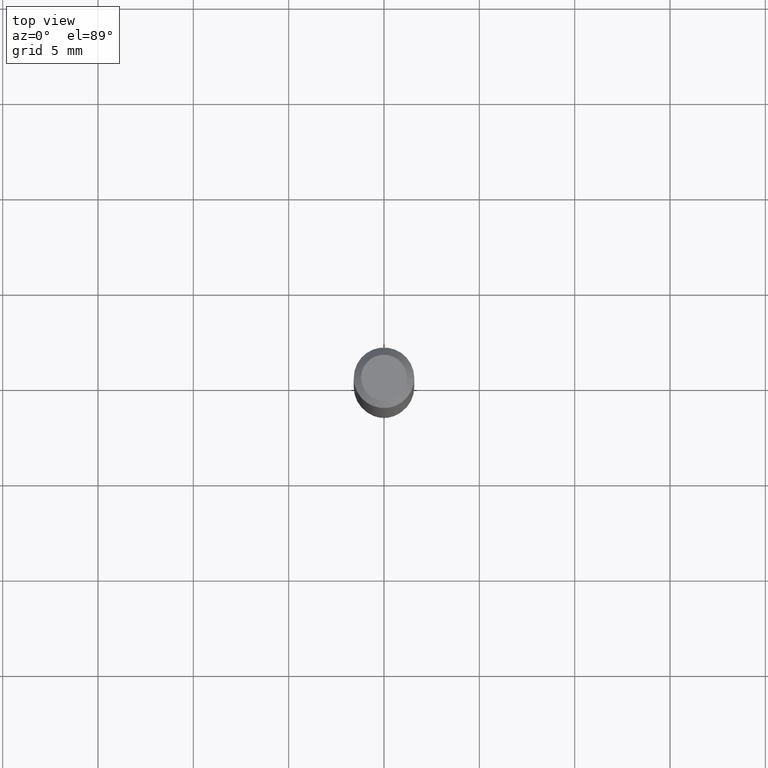
[diagram: clean part render]
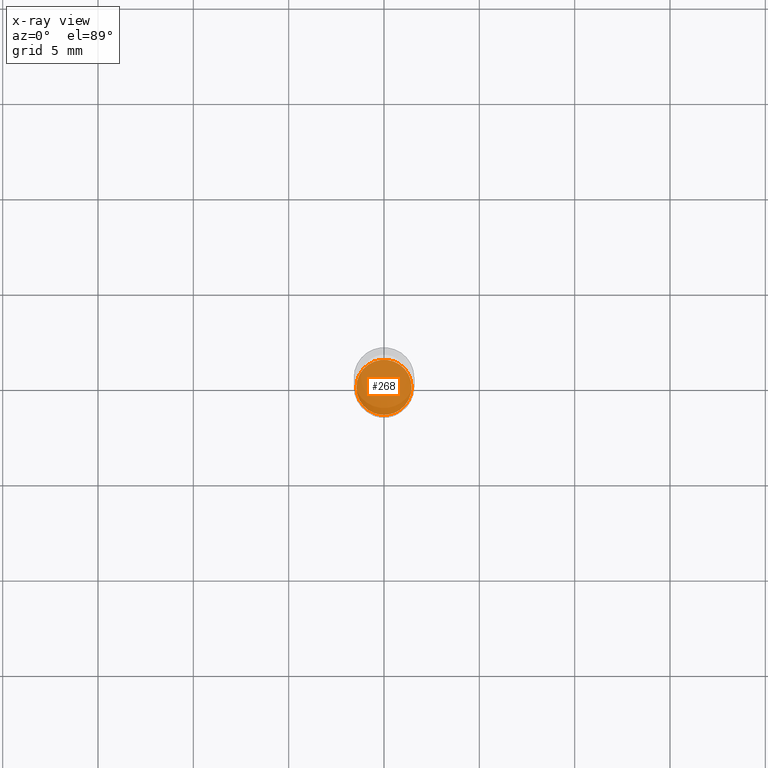
[diagram: x-ray — body ghosted, one internal face saturated and labeled with its STEP entity id]
A machine part, top view, then the same camera in x-ray: the body is ghosted and one INTERNAL B-rep face — a face not visible from any outside direction — is saturated and labeled: STEP entity #268.
In plain terms, the highlighted planar face has unit normal (-0, 0, 1).
Its self-contained STEP definition (entity closure, byte-faithful):
#11 = CARTESIAN_POINT ( 'NONE',  ( 2.824516471143833307E-29, -4.032660946363833383E-15, -1.155000000000000027 ) ) ;
#17 = PLANE ( 'NONE',  #272 ) ;
#20 = CIRCLE ( 'NONE', #306, 0.05700000000000001593 ) ;
#64 = ORIENTED_EDGE ( 'NONE', *, *, #138, .F. ) ;
#70 = EDGE_LOOP ( 'NONE', ( #64, #136 ) ) ;
#79 = CARTESIAN_POINT ( 'NONE',  ( 2.824516471143833307E-29, -4.032660946363833383E-15, -1.155000000000000027 ) ) ;
#86 = CIRCLE ( 'NONE', #204, 0.05700000000000001593 ) ;
#134 = EDGE_CURVE ( 'NONE', #424, #492, #20, .T. ) ;
#136 = ORIENTED_EDGE ( 'NONE', *, *, #134, .F. ) ;
#138 = EDGE_CURVE ( 'NONE', #492, #424, #86, .T. ) ;
#204 = AXIS2_PLACEMENT_3D ( 'NONE', #11, #322, #480 ) ;
#207 = FACE_OUTER_BOUND ( 'NONE', #70, .T. ) ;
#229 = DIRECTION ( 'NONE',  ( 1.000000000000000000, -6.982962677686263555E-15, 0.000000000000000000 ) ) ;
#268 = ADVANCED_FACE ( 'NONE', ( #207 ), #17, .F. ) ;
#269 = CARTESIAN_POINT ( 'NONE',  ( -0.05700000000000001593, -3.625002359806465505E-15, -1.155000000000000027 ) ) ;
#272 = AXIS2_PLACEMENT_3D ( 'NONE', #485, #286, #441 ) ;
#286 = DIRECTION ( 'NONE',  ( -2.438088387897960049E-29, 3.491481338843145188E-15, 1.000000000000000000 ) ) ;
#306 = AXIS2_PLACEMENT_3D ( 'NONE', #79, #356, #229 ) ;
#322 = DIRECTION ( 'NONE',  ( -2.445468806185136597E-29, 3.491481338843145583E-15, 1.000000000000000000 ) ) ;
#356 = DIRECTION ( 'NONE',  ( -2.445468806185136597E-29, 3.491481338843145583E-15, 1.000000000000000000 ) ) ;
#363 = CARTESIAN_POINT ( 'NONE',  ( 0.05700000000000001593, -4.430689818991950396E-15, -1.155000000000000027 ) ) ;
#424 = VERTEX_POINT ( 'NONE', #269 ) ;
#441 = DIRECTION ( 'NONE',  ( 1.000000000000000000, -6.982962677686265922E-15, 4.876176775795935793E-29 ) ) ;
#480 = DIRECTION ( 'NONE',  ( 1.000000000000000000, -6.982962677686263555E-15, 0.000000000000000000 ) ) ;
#485 = CARTESIAN_POINT ( 'NONE',  ( 2.824516471143833307E-29, -4.032660946363833383E-15, -1.155000000000000027 ) ) ;
#492 = VERTEX_POINT ( 'NONE', #363 ) ;